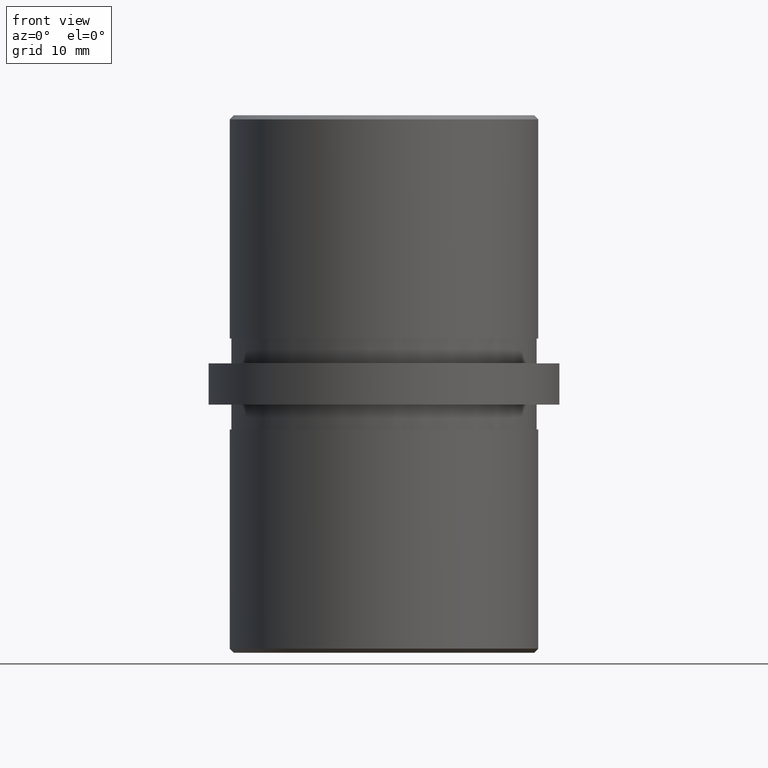
[diagram: clean part render]
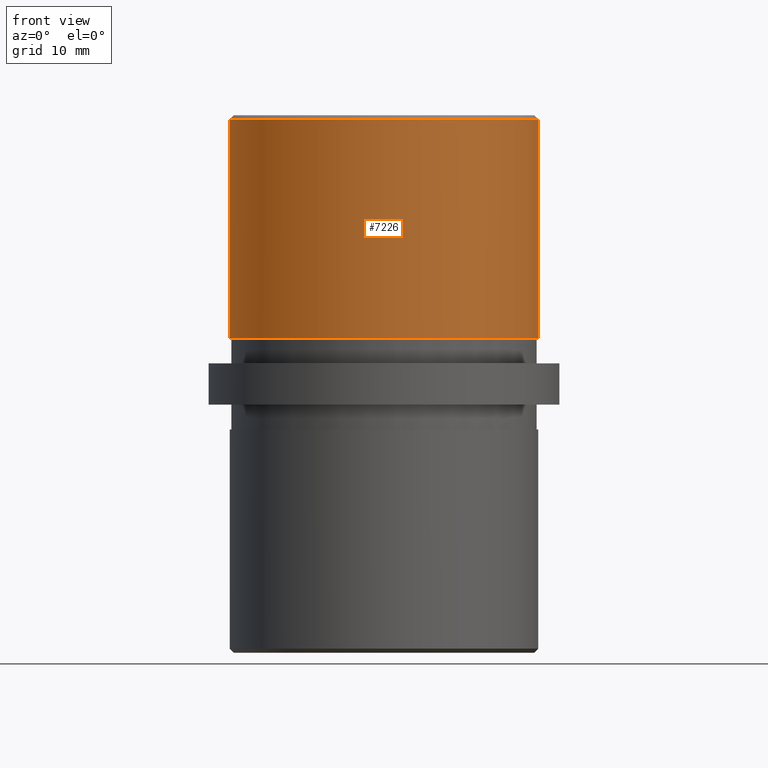
[diagram: same view with one face highlighted and labeled with its STEP entity id]
A machine part, front view. The second image highlights one B-rep face of the part: STEP entity #7226.
In plain terms, the highlighted cylindrical surface (partial cylindrical patch) has radius 18.65 mm, axis along (-0, -0, -1).
Its self-contained STEP definition (entity closure, byte-faithful):
#1663 = LINE ( 'NONE', #3898, #12760 ) ;
#1730 = CARTESIAN_POINT ( 'NONE',  ( -18.65000000000000200, 0.0000000000000000000, 5.500000000000000000 ) ) ;
#2152 = EDGE_LOOP ( 'NONE', ( #6897, #12644, #15308, #13711 ) ) ;
#2167 = CARTESIAN_POINT ( 'NONE',  ( -18.65000000000000200, 0.0000000000000000000, 31.99999999999998600 ) ) ;
#2631 = CARTESIAN_POINT ( 'NONE',  ( 18.65000000000000200, 2.283966280409814200E-015, 5.500000000000000000 ) ) ;
#3004 = CIRCLE ( 'NONE', #13696, 18.65000000000000200 ) ;
#3688 = DIRECTION ( 'NONE',  ( -0.0000000000000000000, -0.0000000000000000000, -1.000000000000000000 ) ) ;
#3733 = VERTEX_POINT ( 'NONE', #2167 ) ;
#3898 = CARTESIAN_POINT ( 'NONE',  ( 18.65000000000000200, 2.283966280409814200E-015, 32.50000000000000000 ) ) ;
#3952 = VERTEX_POINT ( 'NONE', #1730 ) ;
#5229 = EDGE_CURVE ( 'NONE', #3952, #5289, #14136, .T. ) ;
#5289 = VERTEX_POINT ( 'NONE', #2631 ) ;
#5610 = DIRECTION ( 'NONE',  ( 0.0000000000000000000, 0.0000000000000000000, -1.000000000000000000 ) ) ;
#5814 = EDGE_CURVE ( 'NONE', #19893, #3733, #3004, .T. ) ;
#6098 = CARTESIAN_POINT ( 'NONE',  ( 0.0000000000000000000, 0.0000000000000000000, 5.500000000000000000 ) ) ;
#6600 = AXIS2_PLACEMENT_3D ( 'NONE', #11453, #13436, #18521 ) ;
#6897 = ORIENTED_EDGE ( 'NONE', *, *, #12060, .F. ) ;
#7226 = ADVANCED_FACE ( 'NONE', ( #18767 ), #21625, .T. ) ;
#9374 = CARTESIAN_POINT ( 'NONE',  ( 18.65000000000000200, 2.283966280409814200E-015, 31.99999999999998600 ) ) ;
#9564 = AXIS2_PLACEMENT_3D ( 'NONE', #6098, #14400, #12702 ) ;
#11453 = CARTESIAN_POINT ( 'NONE',  ( 0.0000000000000000000, 0.0000000000000000000, 32.50000000000000000 ) ) ;
#12060 = EDGE_CURVE ( 'NONE', #19893, #5289, #1663, .T. ) ;
#12644 = ORIENTED_EDGE ( 'NONE', *, *, #5814, .T. ) ;
#12702 = DIRECTION ( 'NONE',  ( 1.000000000000000000, 0.0000000000000000000, 0.0000000000000000000 ) ) ;
#12760 = VECTOR ( 'NONE', #3688, 1000.000000000000000 ) ;
#13169 = DIRECTION ( 'NONE',  ( -0.0000000000000000000, -0.0000000000000000000, -1.000000000000000000 ) ) ;
#13436 = DIRECTION ( 'NONE',  ( -0.0000000000000000000, -0.0000000000000000000, -1.000000000000000000 ) ) ;
#13696 = AXIS2_PLACEMENT_3D ( 'NONE', #20836, #5610, #14055 ) ;
#13711 = ORIENTED_EDGE ( 'NONE', *, *, #5229, .T. ) ;
#14055 = DIRECTION ( 'NONE',  ( 1.000000000000000000, 0.0000000000000000000, 0.0000000000000000000 ) ) ;
#14136 = CIRCLE ( 'NONE', #9564, 18.65000000000000200 ) ;
#14400 = DIRECTION ( 'NONE',  ( 0.0000000000000000000, 0.0000000000000000000, 1.000000000000000000 ) ) ;
#15308 = ORIENTED_EDGE ( 'NONE', *, *, #20419, .T. ) ;
#18455 = LINE ( 'NONE', #21765, #18727 ) ;
#18521 = DIRECTION ( 'NONE',  ( -1.000000000000000000, 0.0000000000000000000, 0.0000000000000000000 ) ) ;
#18727 = VECTOR ( 'NONE', #13169, 1000.000000000000000 ) ;
#18767 = FACE_OUTER_BOUND ( 'NONE', #2152, .T. ) ;
#19893 = VERTEX_POINT ( 'NONE', #9374 ) ;
#20419 = EDGE_CURVE ( 'NONE', #3733, #3952, #18455, .T. ) ;
#20836 = CARTESIAN_POINT ( 'NONE',  ( 0.0000000000000000000, 0.0000000000000000000, 31.99999999999998600 ) ) ;
#21625 = CYLINDRICAL_SURFACE ( 'NONE', #6600, 18.65000000000000200 ) ;
#21765 = CARTESIAN_POINT ( 'NONE',  ( -18.65000000000000200, 0.0000000000000000000, 32.50000000000000000 ) ) ;